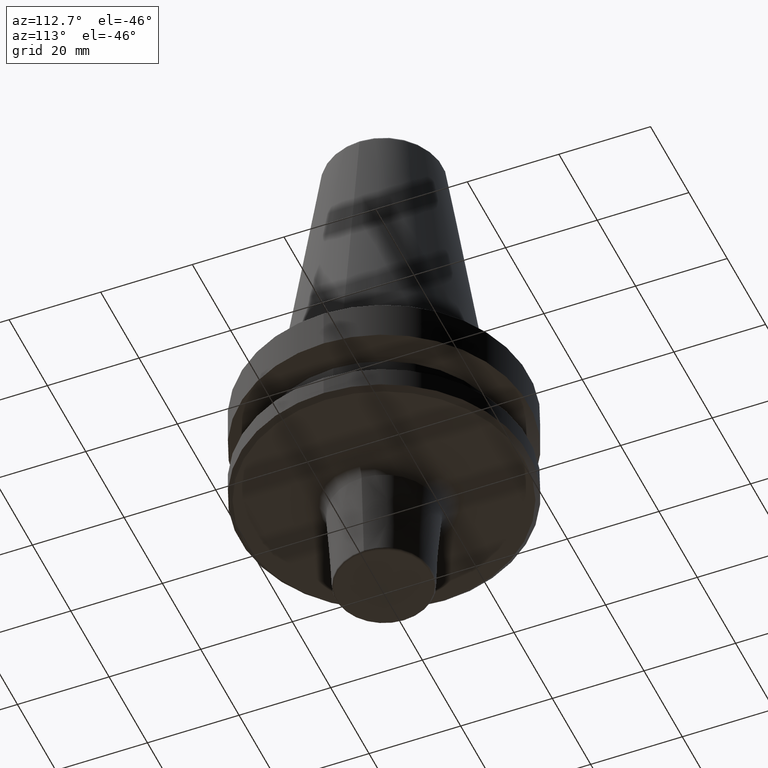
[diagram: clean part render]
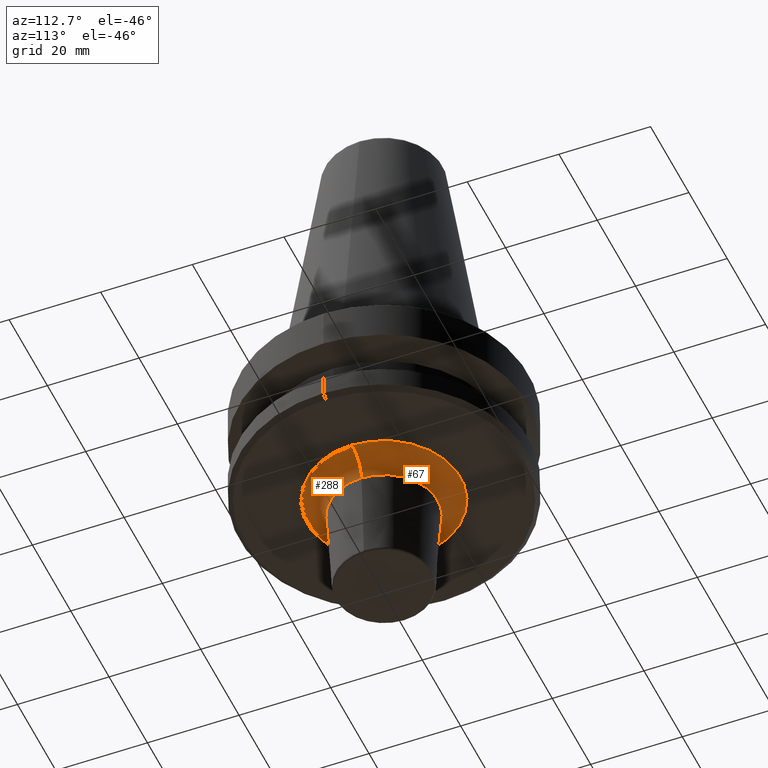
[diagram: same view with one multi-face feature highlighted, each face labeled with its STEP entity id]
A machine part, auxiliary view. The highlighted faces form ONE feature: a constant-radius fillet chain: 2 tangent blend faces with common blend radius 5 mm. The faces share edges in the B-rep.
Their STEP definitions:
[1] entity #288 (Torus):
#84 = DIRECTION ( 'NONE',  ( 1.224646799147353200E-016, 1.000000000000000000, 0.0000000000000000000 ) ) ;
#105 = EDGE_LOOP ( 'NONE', ( #810, #158, #278, #739 ) ) ;
#138 = DIRECTION ( 'NONE',  ( -0.0000000000000000000, -0.0000000000000000000, 1.000000000000000000 ) ) ;
#145 = CARTESIAN_POINT ( 'NONE',  ( 16.70899191454727300, 0.0000000000000000000, -92.40000000000803500 ) ) ;
#158 = ORIENTED_EDGE ( 'NONE', *, *, #614, .T. ) ;
#172 = VERTEX_POINT ( 'NONE', #777 ) ;
#202 = DIRECTION ( 'NONE',  ( -0.0000000000000000000, -0.0000000000000000000, 1.000000000000000000 ) ) ;
#216 = VERTEX_POINT ( 'NONE', #997 ) ;
#260 = CARTESIAN_POINT ( 'NONE',  ( 0.0000000000000000000, 0.0000000000000000000, -92.40000000000803500 ) ) ;
#278 = ORIENTED_EDGE ( 'NONE', *, *, #678, .T. ) ;
#284 = EDGE_CURVE ( 'NONE', #532, #457, #463, .T. ) ;
#288 = ADVANCED_FACE ( 'NONE', ( #509 ), #672, .F. ) ;
#338 = AXIS2_PLACEMENT_3D ( 'NONE', #474, #797, #469 ) ;
#390 = CARTESIAN_POINT ( 'NONE',  ( 0.0000000000000000000, 0.0000000000000000000, -97.40000000000804900 ) ) ;
#440 = AXIS2_PLACEMENT_3D ( 'NONE', #390, #202, #741 ) ;
#457 = VERTEX_POINT ( 'NONE', #1052 ) ;
#463 = CIRCLE ( 'NONE', #338, 5.000000000000004400 ) ;
#469 = DIRECTION ( 'NONE',  ( 0.0000000000000000000, 0.0000000000000000000, -1.000000000000000000 ) ) ;
#474 = CARTESIAN_POINT ( 'NONE',  ( 16.70899191454727300, 0.0000000000000000000, -97.40000000000804900 ) ) ;
#509 = FACE_OUTER_BOUND ( 'NONE', #105, .T. ) ;
#518 = DIRECTION ( 'NONE',  ( -1.000000000000000000, 1.224646799147353000E-016, 0.0000000000000000000 ) ) ;
#523 = AXIS2_PLACEMENT_3D ( 'NONE', #854, #84, #518 ) ;
#529 = DIRECTION ( 'NONE',  ( -0.0000000000000000000, -0.0000000000000000000, 1.000000000000000000 ) ) ;
#532 = VERTEX_POINT ( 'NONE', #145 ) ;
#543 = CIRCLE ( 'NONE', #686, 16.70899191454727300 ) ;
#573 = CIRCLE ( 'NONE', #523, 5.000000000000008000 ) ;
#610 = DIRECTION ( 'NONE',  ( 1.000000000000000000, 0.0000000000000000000, 0.0000000000000000000 ) ) ;
#614 = EDGE_CURVE ( 'NONE', #172, #216, #573, .T. ) ;
#639 = EDGE_CURVE ( 'NONE', #172, #532, #543, .T. ) ;
#672 = TOROIDAL_SURFACE ( 'NONE', #440, 16.70899191454727300, 5.000000000000008000 ) ;
#678 = EDGE_CURVE ( 'NONE', #216, #457, #880, .T. ) ;
#686 = AXIS2_PLACEMENT_3D ( 'NONE', #260, #138, #610 ) ;
#739 = ORIENTED_EDGE ( 'NONE', *, *, #284, .F. ) ;
#741 = DIRECTION ( 'NONE',  ( 1.000000000000000000, 0.0000000000000000000, 0.0000000000000000000 ) ) ;
#777 = CARTESIAN_POINT ( 'NONE',  ( -16.70899191454727300, 2.046261346512932700E-015, -92.40000000000803500 ) ) ;
#792 = AXIS2_PLACEMENT_3D ( 'NONE', #865, #529, #928 ) ;
#797 = DIRECTION ( 'NONE',  ( 0.0000000000000000000, -1.000000000000000000, 0.0000000000000000000 ) ) ;
#810 = ORIENTED_EDGE ( 'NONE', *, *, #639, .F. ) ;
#854 = CARTESIAN_POINT ( 'NONE',  ( -16.70899191454727300, 2.046261346512932700E-015, -97.40000000000804900 ) ) ;
#865 = CARTESIAN_POINT ( 'NONE',  ( 0.0000000000000000000, 0.0000000000000000000, -97.10053854636829800 ) ) ;
#880 = CIRCLE ( 'NONE', #792, 11.71796768721838200 ) ;
#928 = DIRECTION ( 'NONE',  ( 1.000000000000000000, 0.0000000000000000000, 0.0000000000000000000 ) ) ;
#997 = CARTESIAN_POINT ( 'NONE',  ( -11.71796768721838000, 1.740649254289671100E-015, -97.10053854636829800 ) ) ;
#1052 = CARTESIAN_POINT ( 'NONE',  ( 11.71796768721838200, 0.0000000000000000000, -97.10053854636829800 ) ) ;
[2] entity #67 (Torus):
#67 = ADVANCED_FACE ( 'NONE', ( #251 ), #836, .F. ) ;
#84 = DIRECTION ( 'NONE',  ( 1.224646799147353200E-016, 1.000000000000000000, 0.0000000000000000000 ) ) ;
#115 = CARTESIAN_POINT ( 'NONE',  ( 0.0000000000000000000, 0.0000000000000000000, -92.40000000000803500 ) ) ;
#145 = CARTESIAN_POINT ( 'NONE',  ( 16.70899191454727300, 0.0000000000000000000, -92.40000000000803500 ) ) ;
#163 = CARTESIAN_POINT ( 'NONE',  ( 0.0000000000000000000, 0.0000000000000000000, -97.40000000000804900 ) ) ;
#172 = VERTEX_POINT ( 'NONE', #777 ) ;
#216 = VERTEX_POINT ( 'NONE', #997 ) ;
#240 = AXIS2_PLACEMENT_3D ( 'NONE', #163, #521, #371 ) ;
#251 = FACE_OUTER_BOUND ( 'NONE', #851, .T. ) ;
#284 = EDGE_CURVE ( 'NONE', #532, #457, #463, .T. ) ;
#294 = ORIENTED_EDGE ( 'NONE', *, *, #912, .F. ) ;
#306 = EDGE_CURVE ( 'NONE', #457, #216, #435, .T. ) ;
#338 = AXIS2_PLACEMENT_3D ( 'NONE', #474, #797, #469 ) ;
#371 = DIRECTION ( 'NONE',  ( 1.000000000000000000, 0.0000000000000000000, 0.0000000000000000000 ) ) ;
#387 = AXIS2_PLACEMENT_3D ( 'NONE', #781, #1046, #959 ) ;
#407 = ORIENTED_EDGE ( 'NONE', *, *, #614, .F. ) ;
#435 = CIRCLE ( 'NONE', #387, 11.71796768721838200 ) ;
#457 = VERTEX_POINT ( 'NONE', #1052 ) ;
#463 = CIRCLE ( 'NONE', #338, 5.000000000000004400 ) ;
#469 = DIRECTION ( 'NONE',  ( 0.0000000000000000000, 0.0000000000000000000, -1.000000000000000000 ) ) ;
#474 = CARTESIAN_POINT ( 'NONE',  ( 16.70899191454727300, 0.0000000000000000000, -97.40000000000804900 ) ) ;
#518 = DIRECTION ( 'NONE',  ( -1.000000000000000000, 1.224646799147353000E-016, 0.0000000000000000000 ) ) ;
#521 = DIRECTION ( 'NONE',  ( -0.0000000000000000000, -0.0000000000000000000, 1.000000000000000000 ) ) ;
#523 = AXIS2_PLACEMENT_3D ( 'NONE', #854, #84, #518 ) ;
#532 = VERTEX_POINT ( 'NONE', #145 ) ;
#559 = AXIS2_PLACEMENT_3D ( 'NONE', #115, #842, #679 ) ;
#573 = CIRCLE ( 'NONE', #523, 5.000000000000008000 ) ;
#592 = CIRCLE ( 'NONE', #559, 16.70899191454727300 ) ;
#614 = EDGE_CURVE ( 'NONE', #172, #216, #573, .T. ) ;
#679 = DIRECTION ( 'NONE',  ( 1.000000000000000000, 0.0000000000000000000, 0.0000000000000000000 ) ) ;
#693 = ORIENTED_EDGE ( 'NONE', *, *, #284, .T. ) ;
#703 = ORIENTED_EDGE ( 'NONE', *, *, #306, .T. ) ;
#777 = CARTESIAN_POINT ( 'NONE',  ( -16.70899191454727300, 2.046261346512932700E-015, -92.40000000000803500 ) ) ;
#781 = CARTESIAN_POINT ( 'NONE',  ( 0.0000000000000000000, 0.0000000000000000000, -97.10053854636829800 ) ) ;
#797 = DIRECTION ( 'NONE',  ( 0.0000000000000000000, -1.000000000000000000, 0.0000000000000000000 ) ) ;
#836 = TOROIDAL_SURFACE ( 'NONE', #240, 16.70899191454727300, 5.000000000000008000 ) ;
#842 = DIRECTION ( 'NONE',  ( -0.0000000000000000000, -0.0000000000000000000, 1.000000000000000000 ) ) ;
#851 = EDGE_LOOP ( 'NONE', ( #407, #294, #693, #703 ) ) ;
#854 = CARTESIAN_POINT ( 'NONE',  ( -16.70899191454727300, 2.046261346512932700E-015, -97.40000000000804900 ) ) ;
#912 = EDGE_CURVE ( 'NONE', #532, #172, #592, .T. ) ;
#959 = DIRECTION ( 'NONE',  ( 1.000000000000000000, 0.0000000000000000000, 0.0000000000000000000 ) ) ;
#997 = CARTESIAN_POINT ( 'NONE',  ( -11.71796768721838000, 1.740649254289671100E-015, -97.10053854636829800 ) ) ;
#1046 = DIRECTION ( 'NONE',  ( -0.0000000000000000000, -0.0000000000000000000, 1.000000000000000000 ) ) ;
#1052 = CARTESIAN_POINT ( 'NONE',  ( 11.71796768721838200, 0.0000000000000000000, -97.10053854636829800 ) ) ;